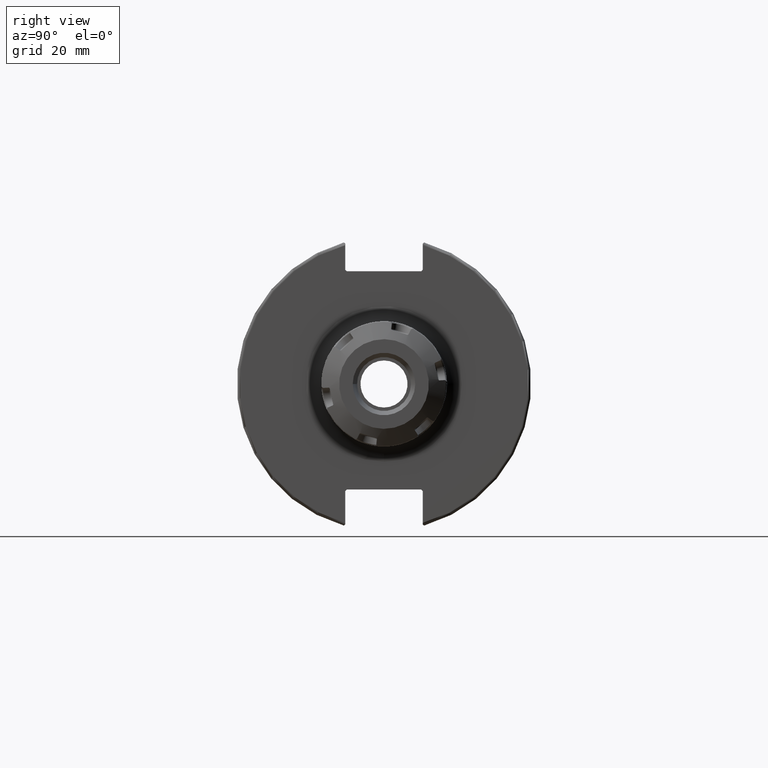
[diagram: clean part render]
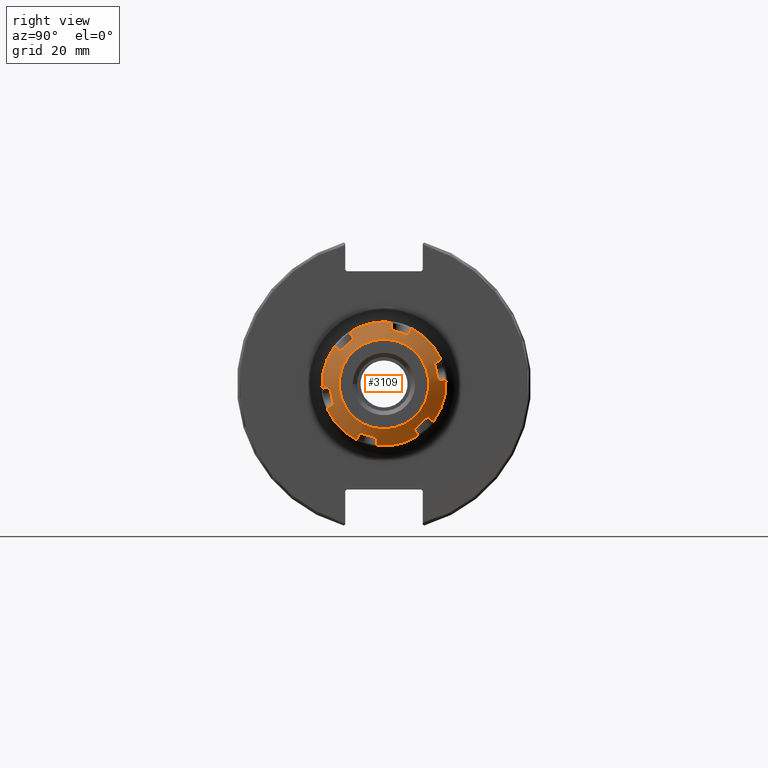
[diagram: same view with one face highlighted and labeled with its STEP entity id]
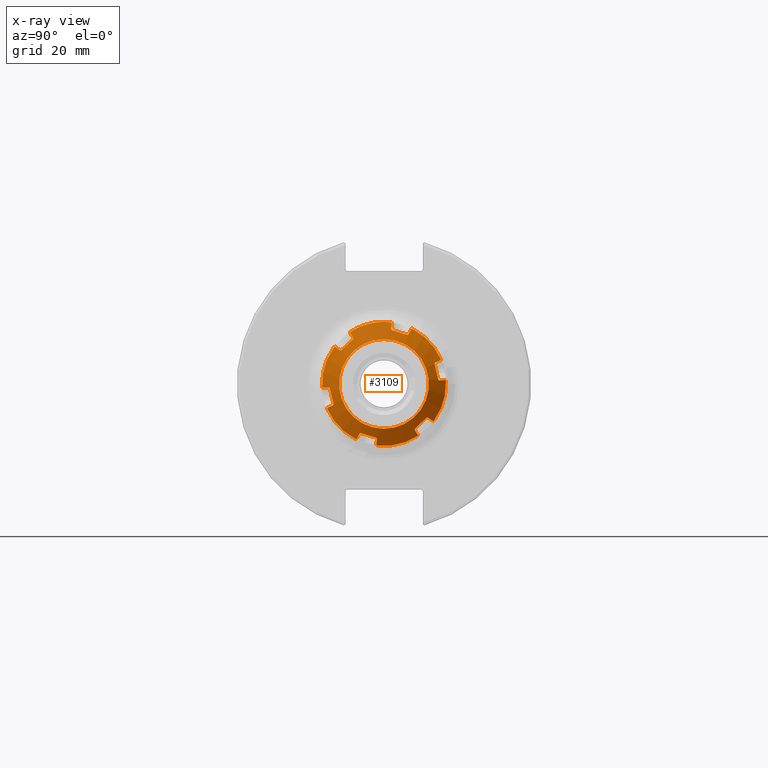
[diagram: x-ray of the same camera — body ghosted, the highlighted face saturated]
A machine part, right view. The second image highlights one B-rep face of the part: STEP entity #3109.
The next image is the same camera in x-ray: the body ghosted, the highlighted face saturated — about 0% of this face is hidden behind the body in this view.
In plain terms, the highlighted conical surface has half-angle 60 deg.
Its self-contained STEP definition (entity closure, byte-faithful):
#162=CONICAL_SURFACE('',#3487,17.87499999999,1.0471975511966);
#234=B_SPLINE_CURVE_WITH_KNOTS('',3,(#5573,#5574,#5575,#5576,#5577),
 .UNSPECIFIED.,.F.,.F.,(4,1,4),(0.,0.5,1.),.UNSPECIFIED.);
#235=B_SPLINE_CURVE_WITH_KNOTS('',3,(#5581,#5582,#5583,#5584,#5585,#5586,
#5587,#5588,#5589,#5590),.UNSPECIFIED.,.F.,.F.,(4,2,2,2,4),(0.000528578936882645,
0.0215655882195211,0.0431311764390421,0.0615000722303087,0.0730576288802265),
 .UNSPECIFIED.);
#236=B_SPLINE_CURVE_WITH_KNOTS('',3,(#5592,#5593,#5594,#5595,#5596,#5597,
#5598),.UNSPECIFIED.,.F.,.F.,(4,1,1,1,4),(0.,0.25,0.5,0.75,1.),
 .UNSPECIFIED.);
#237=B_SPLINE_CURVE_WITH_KNOTS('',3,(#5600,#5601,#5602,#5603,#5604,#5605,
#5606,#5607,#5608,#5609),.UNSPECIFIED.,.F.,.F.,(4,2,2,2,4),(0.252069009809256,
0.263626566458915,0.281995462250182,0.303561050469703,0.324598059752141),
 .UNSPECIFIED.);
#238=B_SPLINE_CURVE_WITH_KNOTS('',3,(#5613,#5614,#5615,#5616,#5617),
 .UNSPECIFIED.,.F.,.F.,(4,1,4),(0.,0.5,1.),.UNSPECIFIED.);
#239=B_SPLINE_CURVE_WITH_KNOTS('',3,(#5621,#5622,#5623,#5624,#5625),
 .UNSPECIFIED.,.F.,.F.,(4,1,4),(0.,0.5,1.),.UNSPECIFIED.);
#240=B_SPLINE_CURVE_WITH_KNOTS('',3,(#5629,#5630,#5631,#5632,#5633,#5634,
#5635,#5636,#5637,#5638),.UNSPECIFIED.,.F.,.F.,(4,2,2,2,4),(0.000528578936294754,
0.0215655882195209,0.0431311764390418,0.0615000722303084,0.073057628880325),
 .UNSPECIFIED.);
#241=B_SPLINE_CURVE_WITH_KNOTS('',3,(#5640,#5641,#5642,#5643,#5644,#5645,
#5646),.UNSPECIFIED.,.F.,.F.,(4,1,1,1,4),(0.,0.25,0.5,0.75,1.),
 .UNSPECIFIED.);
#242=B_SPLINE_CURVE_WITH_KNOTS('',3,(#5648,#5649,#5650,#5651,#5652,#5653,
#5654,#5655,#5656,#5657),.UNSPECIFIED.,.F.,.F.,(4,2,2,2,4),(0.252069009808898,
0.263626566458915,0.281995462250181,0.303561050469702,0.324598059752928),
 .UNSPECIFIED.);
#243=B_SPLINE_CURVE_WITH_KNOTS('',3,(#5661,#5662,#5663,#5664,#5665),
 .UNSPECIFIED.,.F.,.F.,(4,1,4),(0.,0.5,1.),.UNSPECIFIED.);
#244=B_SPLINE_CURVE_WITH_KNOTS('',3,(#5669,#5670,#5671,#5672,#5673),
 .UNSPECIFIED.,.F.,.F.,(4,1,4),(0.,0.5,1.),.UNSPECIFIED.);
#245=B_SPLINE_CURVE_WITH_KNOTS('',3,(#5677,#5678,#5679,#5680,#5681,#5682,
#5683,#5684,#5685,#5686),.UNSPECIFIED.,.F.,.F.,(4,2,2,2,4),(0.000528578937082939,
0.021565588219521,0.0431311764390419,0.0615000722303086,0.0730576288799682),
 .UNSPECIFIED.);
#246=B_SPLINE_CURVE_WITH_KNOTS('',3,(#5688,#5689,#5690,#5691,#5692,#5693,
#5694),.UNSPECIFIED.,.F.,.F.,(4,1,1,1,4),(0.,0.25,0.5,0.75,1.),
 .UNSPECIFIED.);
#247=B_SPLINE_CURVE_WITH_KNOTS('',3,(#5696,#5697,#5698,#5699,#5700,#5701,
#5702,#5703,#5704,#5705),.UNSPECIFIED.,.F.,.F.,(4,2,2,2,4),(0.252069009808997,
0.263626566458915,0.281995462250181,0.303561050469702,0.324598059752341),
 .UNSPECIFIED.);
#248=B_SPLINE_CURVE_WITH_KNOTS('',3,(#5709,#5710,#5711,#5712,#5713),
 .UNSPECIFIED.,.F.,.F.,(4,1,4),(0.,0.5,1.),.UNSPECIFIED.);
#249=B_SPLINE_CURVE_WITH_KNOTS('',3,(#5717,#5718,#5719,#5720,#5721),
 .UNSPECIFIED.,.F.,.F.,(4,1,4),(0.,0.5,1.),.UNSPECIFIED.);
#250=B_SPLINE_CURVE_WITH_KNOTS('',3,(#5725,#5726,#5727,#5728,#5729,#5730,
#5731,#5732,#5733,#5734),.UNSPECIFIED.,.F.,.F.,(4,2,2,2,4),(0.000528578936882645,
0.0215655882195211,0.0431311764390421,0.0615000722303087,0.0730576288802265),
 .UNSPECIFIED.);
#251=B_SPLINE_CURVE_WITH_KNOTS('',3,(#5736,#5737,#5738,#5739,#5740,#5741,
#5742),.UNSPECIFIED.,.F.,.F.,(4,1,1,1,4),(0.,0.25,0.5,0.75,1.),
 .UNSPECIFIED.);
#252=B_SPLINE_CURVE_WITH_KNOTS('',3,(#5744,#5745,#5746,#5747,#5748,#5749,
#5750,#5751,#5752,#5753),.UNSPECIFIED.,.F.,.F.,(4,2,2,2,4),(0.252069009809255,
0.263626566458915,0.281995462250182,0.303561050469703,0.324598059752141),
 .UNSPECIFIED.);
#253=B_SPLINE_CURVE_WITH_KNOTS('',3,(#5757,#5758,#5759,#5760,#5761),
 .UNSPECIFIED.,.F.,.F.,(4,1,4),(0.,0.5,1.),.UNSPECIFIED.);
#254=B_SPLINE_CURVE_WITH_KNOTS('',3,(#5765,#5766,#5767,#5768,#5769),
 .UNSPECIFIED.,.F.,.F.,(4,1,4),(0.,0.5,1.),.UNSPECIFIED.);
#255=B_SPLINE_CURVE_WITH_KNOTS('',3,(#5773,#5774,#5775,#5776,#5777,#5778,
#5779,#5780,#5781,#5782),.UNSPECIFIED.,.F.,.F.,(4,2,2,2,4),(0.000528578936294754,
0.0215655882195209,0.0431311764390418,0.0615000722303084,0.0730576288803251),
 .UNSPECIFIED.);
#256=B_SPLINE_CURVE_WITH_KNOTS('',3,(#5784,#5785,#5786,#5787,#5788,#5789,
#5790),.UNSPECIFIED.,.F.,.F.,(4,1,1,1,4),(0.,0.25,0.5,0.75,1.),
 .UNSPECIFIED.);
#257=B_SPLINE_CURVE_WITH_KNOTS('',3,(#5792,#5793,#5794,#5795,#5796,#5797,
#5798,#5799,#5800,#5801),.UNSPECIFIED.,.F.,.F.,(4,2,2,2,4),(0.252069009808898,
0.263626566458915,0.281995462250181,0.303561050469702,0.324598059752928),
 .UNSPECIFIED.);
#258=B_SPLINE_CURVE_WITH_KNOTS('',3,(#5805,#5806,#5807,#5808,#5809),
 .UNSPECIFIED.,.F.,.F.,(4,1,4),(0.,0.5,1.),.UNSPECIFIED.);
#259=B_SPLINE_CURVE_WITH_KNOTS('',3,(#5813,#5814,#5815,#5816,#5817),
 .UNSPECIFIED.,.F.,.F.,(4,1,4),(0.,0.5,1.),.UNSPECIFIED.);
#260=B_SPLINE_CURVE_WITH_KNOTS('',3,(#5821,#5822,#5823,#5824,#5825,#5826,
#5827,#5828,#5829,#5830),.UNSPECIFIED.,.F.,.F.,(4,2,2,2,4),(0.000528578937082939,
0.021565588219521,0.0431311764390419,0.0615000722303086,0.0730576288799681),
 .UNSPECIFIED.);
#261=B_SPLINE_CURVE_WITH_KNOTS('',3,(#5832,#5833,#5834,#5835,#5836,#5837,
#5838),.UNSPECIFIED.,.F.,.F.,(4,1,1,1,4),(0.,0.25,0.5,0.75,1.),
 .UNSPECIFIED.);
#262=B_SPLINE_CURVE_WITH_KNOTS('',3,(#5840,#5841,#5842,#5843,#5844,#5845,
#5846,#5847,#5848,#5849),.UNSPECIFIED.,.F.,.F.,(4,2,2,2,4),(0.252069009808997,
0.263626566458915,0.281995462250181,0.303561050469702,0.324598059752341),
 .UNSPECIFIED.);
#263=B_SPLINE_CURVE_WITH_KNOTS('',3,(#5853,#5854,#5855,#5856,#5857),
 .UNSPECIFIED.,.F.,.F.,(4,1,4),(0.,0.5,1.),.UNSPECIFIED.);
#389=FACE_OUTER_BOUND('',#585,.T.);
#585=EDGE_LOOP('',(#2601,#2602,#2603,#2604,#2605,#2606,#2607,#2608,#2609,
#2610,#2611,#2612,#2613,#2614,#2615,#2616,#2617,#2618,#2619,#2620,#2621,
#2622,#2623,#2624,#2625,#2626,#2627,#2628,#2629,#2630,#2631,#2632,#2633,
#2634,#2635,#2636,#2637,#2638,#2639,#2640,#2641,#2642,#2643,#2644,#2645,
#2646,#2647,#2648,#2649,#2650,#2651,#2652));
#753=LINE('',#5579,#939);
#754=LINE('',#5611,#940);
#755=LINE('',#5627,#941);
#756=LINE('',#5659,#942);
#757=LINE('',#5675,#943);
#758=LINE('',#5707,#944);
#759=LINE('',#5723,#945);
#760=LINE('',#5755,#946);
#761=LINE('',#5771,#947);
#762=LINE('',#5803,#948);
#763=LINE('',#5819,#949);
#764=LINE('',#5851,#950);
#765=LINE('',#5859,#951);
#939=VECTOR('',#4190,10.);
#940=VECTOR('',#4191,10.);
#941=VECTOR('',#4194,10.);
#942=VECTOR('',#4195,10.);
#943=VECTOR('',#4198,10.);
#944=VECTOR('',#4199,10.);
#945=VECTOR('',#4202,10.);
#946=VECTOR('',#4203,10.);
#947=VECTOR('',#4206,10.);
#948=VECTOR('',#4207,10.);
#949=VECTOR('',#4210,10.);
#950=VECTOR('',#4211,10.);
#951=VECTOR('',#4214,17.87499999999);
#1167=CIRCLE('',#3486,15.);
#1168=CIRCLE('',#3488,20.75);
#1169=CIRCLE('',#3489,20.75);
#1170=CIRCLE('',#3490,20.75);
#1171=CIRCLE('',#3491,20.75);
#1172=CIRCLE('',#3492,20.75);
#1173=CIRCLE('',#3493,20.75);
#1174=CIRCLE('',#3494,20.75);
#1420=VERTEX_POINT('',#5566);
#1421=VERTEX_POINT('',#5569);
#1422=VERTEX_POINT('',#5570);
#1423=VERTEX_POINT('',#5572);
#1424=VERTEX_POINT('',#5578);
#1425=VERTEX_POINT('',#5580);
#1426=VERTEX_POINT('',#5591);
#1427=VERTEX_POINT('',#5599);
#1428=VERTEX_POINT('',#5610);
#1429=VERTEX_POINT('',#5612);
#1430=VERTEX_POINT('',#5618);
#1431=VERTEX_POINT('',#5620);
#1432=VERTEX_POINT('',#5626);
#1433=VERTEX_POINT('',#5628);
#1434=VERTEX_POINT('',#5639);
#1435=VERTEX_POINT('',#5647);
#1436=VERTEX_POINT('',#5658);
#1437=VERTEX_POINT('',#5660);
#1438=VERTEX_POINT('',#5666);
#1439=VERTEX_POINT('',#5668);
#1440=VERTEX_POINT('',#5674);
#1441=VERTEX_POINT('',#5676);
#1442=VERTEX_POINT('',#5687);
#1443=VERTEX_POINT('',#5695);
#1444=VERTEX_POINT('',#5706);
#1445=VERTEX_POINT('',#5708);
#1446=VERTEX_POINT('',#5714);
#1447=VERTEX_POINT('',#5716);
#1448=VERTEX_POINT('',#5722);
#1449=VERTEX_POINT('',#5724);
#1450=VERTEX_POINT('',#5735);
#1451=VERTEX_POINT('',#5743);
#1452=VERTEX_POINT('',#5754);
#1453=VERTEX_POINT('',#5756);
#1454=VERTEX_POINT('',#5762);
#1455=VERTEX_POINT('',#5764);
#1456=VERTEX_POINT('',#5770);
#1457=VERTEX_POINT('',#5772);
#1458=VERTEX_POINT('',#5783);
#1459=VERTEX_POINT('',#5791);
#1460=VERTEX_POINT('',#5802);
#1461=VERTEX_POINT('',#5804);
#1462=VERTEX_POINT('',#5810);
#1463=VERTEX_POINT('',#5812);
#1464=VERTEX_POINT('',#5818);
#1465=VERTEX_POINT('',#5820);
#1466=VERTEX_POINT('',#5831);
#1467=VERTEX_POINT('',#5839);
#1468=VERTEX_POINT('',#5850);
#1469=VERTEX_POINT('',#5852);
#1828=EDGE_CURVE('',#1420,#1420,#1167,.T.);
#1829=EDGE_CURVE('',#1421,#1422,#1168,.T.);
#1830=EDGE_CURVE('',#1421,#1423,#234,.T.);
#1831=EDGE_CURVE('',#1424,#1423,#753,.T.);
#1832=EDGE_CURVE('',#1424,#1425,#235,.T.);
#1833=EDGE_CURVE('',#1426,#1425,#236,.T.);
#1834=EDGE_CURVE('',#1426,#1427,#237,.T.);
#1835=EDGE_CURVE('',#1428,#1427,#754,.T.);
#1836=EDGE_CURVE('',#1428,#1429,#238,.T.);
#1837=EDGE_CURVE('',#1429,#1430,#1169,.T.);
#1838=EDGE_CURVE('',#1430,#1431,#239,.T.);
#1839=EDGE_CURVE('',#1432,#1431,#755,.T.);
#1840=EDGE_CURVE('',#1432,#1433,#240,.T.);
#1841=EDGE_CURVE('',#1434,#1433,#241,.T.);
#1842=EDGE_CURVE('',#1434,#1435,#242,.T.);
#1843=EDGE_CURVE('',#1436,#1435,#756,.T.);
#1844=EDGE_CURVE('',#1436,#1437,#243,.T.);
#1845=EDGE_CURVE('',#1437,#1438,#1170,.T.);
#1846=EDGE_CURVE('',#1438,#1439,#244,.T.);
#1847=EDGE_CURVE('',#1440,#1439,#757,.T.);
#1848=EDGE_CURVE('',#1440,#1441,#245,.T.);
#1849=EDGE_CURVE('',#1442,#1441,#246,.T.);
#1850=EDGE_CURVE('',#1442,#1443,#247,.T.);
#1851=EDGE_CURVE('',#1444,#1443,#758,.T.);
#1852=EDGE_CURVE('',#1444,#1445,#248,.T.);
#1853=EDGE_CURVE('',#1446,#1445,#1171,.T.);
#1854=EDGE_CURVE('',#1446,#1447,#249,.T.);
#1855=EDGE_CURVE('',#1448,#1447,#759,.T.);
#1856=EDGE_CURVE('',#1448,#1449,#250,.T.);
#1857=EDGE_CURVE('',#1450,#1449,#251,.T.);
#1858=EDGE_CURVE('',#1450,#1451,#252,.T.);
#1859=EDGE_CURVE('',#1452,#1451,#760,.T.);
#1860=EDGE_CURVE('',#1452,#1453,#253,.T.);
#1861=EDGE_CURVE('',#1453,#1454,#1172,.T.);
#1862=EDGE_CURVE('',#1454,#1455,#254,.T.);
#1863=EDGE_CURVE('',#1456,#1455,#761,.T.);
#1864=EDGE_CURVE('',#1456,#1457,#255,.T.);
#1865=EDGE_CURVE('',#1458,#1457,#256,.T.);
#1866=EDGE_CURVE('',#1458,#1459,#257,.T.);
#1867=EDGE_CURVE('',#1460,#1459,#762,.T.);
#1868=EDGE_CURVE('',#1460,#1461,#258,.T.);
#1869=EDGE_CURVE('',#1461,#1462,#1173,.T.);
#1870=EDGE_CURVE('',#1462,#1463,#259,.T.);
#1871=EDGE_CURVE('',#1464,#1463,#763,.T.);
#1872=EDGE_CURVE('',#1464,#1465,#260,.T.);
#1873=EDGE_CURVE('',#1466,#1465,#261,.T.);
#1874=EDGE_CURVE('',#1466,#1467,#262,.T.);
#1875=EDGE_CURVE('',#1468,#1467,#764,.T.);
#1876=EDGE_CURVE('',#1468,#1469,#263,.T.);
#1877=EDGE_CURVE('',#1422,#1469,#1174,.T.);
#1878=EDGE_CURVE('',#1422,#1420,#765,.T.);
#2601=ORIENTED_EDGE('',*,*,#1829,.F.);
#2602=ORIENTED_EDGE('',*,*,#1830,.T.);
#2603=ORIENTED_EDGE('',*,*,#1831,.F.);
#2604=ORIENTED_EDGE('',*,*,#1832,.T.);
#2605=ORIENTED_EDGE('',*,*,#1833,.F.);
#2606=ORIENTED_EDGE('',*,*,#1834,.T.);
#2607=ORIENTED_EDGE('',*,*,#1835,.F.);
#2608=ORIENTED_EDGE('',*,*,#1836,.T.);
#2609=ORIENTED_EDGE('',*,*,#1837,.T.);
#2610=ORIENTED_EDGE('',*,*,#1838,.T.);
#2611=ORIENTED_EDGE('',*,*,#1839,.F.);
#2612=ORIENTED_EDGE('',*,*,#1840,.T.);
#2613=ORIENTED_EDGE('',*,*,#1841,.F.);
#2614=ORIENTED_EDGE('',*,*,#1842,.T.);
#2615=ORIENTED_EDGE('',*,*,#1843,.F.);
#2616=ORIENTED_EDGE('',*,*,#1844,.T.);
#2617=ORIENTED_EDGE('',*,*,#1845,.T.);
#2618=ORIENTED_EDGE('',*,*,#1846,.T.);
#2619=ORIENTED_EDGE('',*,*,#1847,.F.);
#2620=ORIENTED_EDGE('',*,*,#1848,.T.);
#2621=ORIENTED_EDGE('',*,*,#1849,.F.);
#2622=ORIENTED_EDGE('',*,*,#1850,.T.);
#2623=ORIENTED_EDGE('',*,*,#1851,.F.);
#2624=ORIENTED_EDGE('',*,*,#1852,.T.);
#2625=ORIENTED_EDGE('',*,*,#1853,.F.);
#2626=ORIENTED_EDGE('',*,*,#1854,.T.);
#2627=ORIENTED_EDGE('',*,*,#1855,.F.);
#2628=ORIENTED_EDGE('',*,*,#1856,.T.);
#2629=ORIENTED_EDGE('',*,*,#1857,.F.);
#2630=ORIENTED_EDGE('',*,*,#1858,.T.);
#2631=ORIENTED_EDGE('',*,*,#1859,.F.);
#2632=ORIENTED_EDGE('',*,*,#1860,.T.);
#2633=ORIENTED_EDGE('',*,*,#1861,.T.);
#2634=ORIENTED_EDGE('',*,*,#1862,.T.);
#2635=ORIENTED_EDGE('',*,*,#1863,.F.);
#2636=ORIENTED_EDGE('',*,*,#1864,.T.);
#2637=ORIENTED_EDGE('',*,*,#1865,.F.);
#2638=ORIENTED_EDGE('',*,*,#1866,.T.);
#2639=ORIENTED_EDGE('',*,*,#1867,.F.);
#2640=ORIENTED_EDGE('',*,*,#1868,.T.);
#2641=ORIENTED_EDGE('',*,*,#1869,.T.);
#2642=ORIENTED_EDGE('',*,*,#1870,.T.);
#2643=ORIENTED_EDGE('',*,*,#1871,.F.);
#2644=ORIENTED_EDGE('',*,*,#1872,.T.);
#2645=ORIENTED_EDGE('',*,*,#1873,.F.);
#2646=ORIENTED_EDGE('',*,*,#1874,.T.);
#2647=ORIENTED_EDGE('',*,*,#1875,.F.);
#2648=ORIENTED_EDGE('',*,*,#1876,.T.);
#2649=ORIENTED_EDGE('',*,*,#1877,.F.);
#2650=ORIENTED_EDGE('',*,*,#1878,.T.);
#2651=ORIENTED_EDGE('',*,*,#1828,.F.);
#2652=ORIENTED_EDGE('',*,*,#1878,.F.);
#3109=ADVANCED_FACE('',(#389),#162,.T.);
#3486=AXIS2_PLACEMENT_3D('',#5567,#4184,#4185);
#3487=AXIS2_PLACEMENT_3D('',#5568,#4186,#4187);
#3488=AXIS2_PLACEMENT_3D('',#5571,#4188,#4189);
#3489=AXIS2_PLACEMENT_3D('',#5619,#4192,#4193);
#3490=AXIS2_PLACEMENT_3D('',#5667,#4196,#4197);
#3491=AXIS2_PLACEMENT_3D('',#5715,#4200,#4201);
#3492=AXIS2_PLACEMENT_3D('',#5763,#4204,#4205);
#3493=AXIS2_PLACEMENT_3D('',#5811,#4208,#4209);
#3494=AXIS2_PLACEMENT_3D('',#5858,#4212,#4213);
#4184=DIRECTION('center_axis',(1.,0.,0.));
#4185=DIRECTION('ref_axis',(0.,0.,1.));
#4186=DIRECTION('center_axis',(-1.,0.,0.));
#4187=DIRECTION('ref_axis',(0.,0.,-1.));
#4188=DIRECTION('center_axis',(-1.,0.,0.));
#4189=DIRECTION('ref_axis',(0.,-0.338154383362992,0.941090650794277));
#4190=DIRECTION('',(-0.499985630569931,-0.296200970137599,0.81380547707246));
#4191=DIRECTION('',(0.499985630568637,0.556675731813364,-0.663420303303222));
#4192=DIRECTION('center_axis',(1.,0.,0.));
#4193=DIRECTION('ref_axis',(0.,-0.645931219170366,0.76339561179056));
#4194=DIRECTION('',(-0.4999856305701,-0.852876701952219,0.150385173772302));
#4195=DIRECTION('',(0.4999856305701,0.852876701952219,0.150385173772302));
#4196=DIRECTION('center_axis',(1.,0.,0.));
#4197=DIRECTION('ref_axis',(0.,-0.984085602533375,-0.177695039003695));
#4198=DIRECTION('',(-0.499985630568637,-0.556675731813364,-0.663420303303222));
#4199=DIRECTION('',(0.499985630569931,0.296200970137599,0.81380547707246));
#4200=DIRECTION('center_axis',(-1.,0.,0.));
#4201=DIRECTION('ref_axis',(0.,0.338154383362992,-0.941090650794277));
#4202=DIRECTION('',(-0.499985630569931,0.296200970137599,-0.81380547707246));
#4203=DIRECTION('',(0.499985630568637,-0.556675731813364,0.663420303303222));
#4204=DIRECTION('center_axis',(1.,0.,0.));
#4205=DIRECTION('ref_axis',(0.,0.645931219170366,-0.76339561179056));
#4206=DIRECTION('',(-0.4999856305701,0.852876701952219,-0.150385173772302));
#4207=DIRECTION('',(0.4999856305701,-0.852876701952219,-0.150385173772302));
#4208=DIRECTION('center_axis',(1.,0.,0.));
#4209=DIRECTION('ref_axis',(0.,0.984085602533375,0.177695039003695));
#4210=DIRECTION('',(-0.499985630568637,0.556675731813364,0.663420303303222));
#4211=DIRECTION('',(0.499985630569931,-0.296200970137599,-0.81380547707246));
#4212=DIRECTION('center_axis',(-1.,0.,0.));
#4213=DIRECTION('ref_axis',(0.,-0.338154383362992,0.941090650794277));
#4214=DIRECTION('',(0.5,-1.06057523872491E-16,-0.866025403784439));
#5566=CARTESIAN_POINT('',(10.,0.,15.));
#5567=CARTESIAN_POINT('Origin',(10.,0.,0.));
#5568=CARTESIAN_POINT('Origin',(8.340117976085,0.,0.));
#5569=CARTESIAN_POINT('',(6.68023595216,-7.016703454783,19.52763100398));
#5570=CARTESIAN_POINT('',(6.68023595215821,2.54114210823094E-15,20.7500000000015));
#5571=CARTESIAN_POINT('Origin',(6.68023595216,0.,0.));
#5572=CARTESIAN_POINT('',(6.825682591738,-7.171427942968,19.20265255629));
#5573=CARTESIAN_POINT('Ctrl Pts',(6.68023595216,-7.016703454783,19.52763100398));
#5574=CARTESIAN_POINT('Ctrl Pts',(6.704787157248,-7.042656692872,19.47311963913));
#5575=CARTESIAN_POINT('Ctrl Pts',(6.753579391822,-7.094397359189,19.36444517125));
#5576=CARTESIAN_POINT('Ctrl Pts',(6.801751497951,-7.145806366539,19.25646730943));
#5577=CARTESIAN_POINT('Ctrl Pts',(6.825682591738,-7.171427942968,19.20265255629));
#5578=CARTESIAN_POINT('',(7.882383512005,-6.545418276707,17.48270513388));
#5579=CARTESIAN_POINT('',(7.882383512005,-6.545418276707,17.48270513388));
#5580=CARTESIAN_POINT('',(8.161702976639,-6.7652645871,16.87868236033));
#5581=CARTESIAN_POINT('Ctrl Pts',(7.88238351200488,-6.5454182767061,17.4827051338802));
#5582=CARTESIAN_POINT('Ctrl Pts',(7.91757308100159,-6.52457123031395,17.4254283446545));
#5583=CARTESIAN_POINT('Ctrl Pts',(7.9552484221707,-6.51324235909714,17.3600045332163));
#5584=CARTESIAN_POINT('Ctrl Pts',(8.02648755858909,-6.51797087692523,17.2263665624065));
#5585=CARTESIAN_POINT('Ctrl Pts',(8.05991393278653,-6.53477525858298,17.1581081869268));
#5586=CARTESIAN_POINT('Ctrl Pts',(8.10920621105696,-6.58768370146919,17.0463470263659));
#5587=CARTESIAN_POINT('Ctrl Pts',(8.12973777953577,-6.62383045448549,16.9942231906329));
#5588=CARTESIAN_POINT('Ctrl Pts',(8.15229926979325,-6.69836013981006,16.9229037408109));
#5589=CARTESIAN_POINT('Ctrl Pts',(8.15844945494287,-6.73087400881105,16.8985377699606));
#5590=CARTESIAN_POINT('Ctrl Pts',(8.16170297663675,-6.7652645870992,16.8786823603282));
#5591=CARTESIAN_POINT('',(8.161702976639,-11.2347354129,14.29823217591));
#5592=CARTESIAN_POINT('Ctrl Pts',(8.161702976639,-11.2347354129,14.29823217591));
#5593=CARTESIAN_POINT('Ctrl Pts',(8.196946708672,-10.86219991454,14.51331564618));
#5594=CARTESIAN_POINT('Ctrl Pts',(8.250134664999,-10.11721577476,14.94343243982));
#5595=CARTESIAN_POINT('Ctrl Pts',(8.276856688426,-8.999986418851,15.5884651092));
#5596=CARTESIAN_POINT('Ctrl Pts',(8.250133735868,-7.882770110197,16.23349024574));
#5597=CARTESIAN_POINT('Ctrl Pts',(8.196946175203,-7.137794446555,16.66360214569));
#5598=CARTESIAN_POINT('Ctrl Pts',(8.161702976639,-6.7652645871,16.87868236033));
#5599=CARTESIAN_POINT('',(7.882383512005,-11.86775763446,14.40985107296));
#5600=CARTESIAN_POINT('Ctrl Pts',(8.16170297663636,-11.2347354129032,14.2982321759159));
#5601=CARTESIAN_POINT('Ctrl Pts',(8.15844945494243,-11.2691259911908,14.2783767662844));
#5602=CARTESIAN_POINT('Ctrl Pts',(8.15229926979289,-11.3064844754347,14.2624019151798));
#5603=CARTESIAN_POINT('Ctrl Pts',(8.1297377795356,-11.4055137734259,14.233517039264));
#5604=CARTESIAN_POINT('Ctrl Pts',(8.10920621105679,-11.4687277158215,14.228274950754));
#5605=CARTESIAN_POINT('Ctrl Pts',(8.05991393278637,-11.5919699414668,14.2383354754203));
#5606=CARTESIAN_POINT('Ctrl Pts',(8.02648755858892,-11.6594856194821,14.2579116417497));
#5607=CARTESIAN_POINT('Ctrl Pts',(7.95524842217086,-11.7775837560271,14.3206356105929));
#5608=CARTESIAN_POINT('Ctrl Pts',(7.91757308100213,-11.8285780031362,14.3631586065815));
#5609=CARTESIAN_POINT('Ctrl Pts',(7.88238351200571,-11.8677576344567,14.4098510729634));
#5610=CARTESIAN_POINT('',(6.825682591738,-13.04427096231,15.81196505817));
#5611=CARTESIAN_POINT('',(6.825682591738,-13.04427096231,15.81196505817));
#5612=CARTESIAN_POINT('',(6.68023595216,-13.40307279778,15.84045894465));
#5613=CARTESIAN_POINT('Ctrl Pts',(6.825682591738,-13.04427096231,15.81196505817));
#5614=CARTESIAN_POINT('Ctrl Pts',(6.801772251375,-13.10363516757,15.81667940675));
#5615=CARTESIAN_POINT('Ctrl Pts',(6.753621129435,-13.22279980844,15.82614274672));
#5616=CARTESIAN_POINT('Ctrl Pts',(6.704808138864,-13.34283651763,15.83567534112));
#5617=CARTESIAN_POINT('Ctrl Pts',(6.68023595216,-13.40307279778,15.84045894465));
#5618=CARTESIAN_POINT('',(6.68023595216,-20.41977625257,3.687172059327));
#5619=CARTESIAN_POINT('Origin',(6.68023595216,0.,0.));
#5620=CARTESIAN_POINT('',(6.825682591738,-20.21569890528,3.390687498127));
#5621=CARTESIAN_POINT('Ctrl Pts',(6.68023595216,-20.41977625257,3.687172059327));
#5622=CARTESIAN_POINT('Ctrl Pts',(6.704799687283,-20.3855271743,3.637414832095));
#5623=CARTESIAN_POINT('Ctrl Pts',(6.753604317172,-20.31726515581,3.538243440133));
#5624=CARTESIAN_POINT('Ctrl Pts',(6.801763891711,-20.2494755586,3.439758384099));
#5625=CARTESIAN_POINT('Ctrl Pts',(6.825682591738,-20.21569890528,3.390687498127));
#5626=CARTESIAN_POINT('',(7.882383512005,-18.41317591117,3.072854060917));
#5627=CARTESIAN_POINT('',(7.882383512005,-18.41317591117,3.072854060917));
#5628=CARTESIAN_POINT('',(8.161702976639,-18.,2.580450184411));
#5629=CARTESIAN_POINT('Ctrl Pts',(7.88238351200324,-18.4131759111689,3.07285406091752));
#5630=CARTESIAN_POINT('Ctrl Pts',(7.91757308100079,-18.3531492334545,3.06226973807448));
#5631=CARTESIAN_POINT('Ctrl Pts',(7.95524842217103,-18.2908261151263,3.03936892262507));
#5632=CARTESIAN_POINT('Ctrl Pts',(8.0264875585904,-18.1774564964073,2.96845492065783));
#5633=CARTESIAN_POINT('Ctrl Pts',(8.05991393278785,-18.1267452000497,2.91977271150746));
#5634=CARTESIAN_POINT('Ctrl Pts',(8.10920621105827,-18.0564114172907,2.8180720756129));
#5635=CARTESIAN_POINT('Ctrl Pts',(8.12973777953708,-18.0293442279114,2.76070615136998));
#5636=CARTESIAN_POINT('Ctrl Pts',(8.15229926979464,-18.0048446152438,2.6605018256315));
#5637=CARTESIAN_POINT('Ctrl Pts',(8.15844945494429,-18.,2.6201610036758));
#5638=CARTESIAN_POINT('Ctrl Pts',(8.16170297663815,-18.,2.58045018441093));
#5639=CARTESIAN_POINT('',(8.161702976639,-18.,-2.580450184411));
#5640=CARTESIAN_POINT('Ctrl Pts',(8.161702976639,-18.,-2.580450184411));
#5641=CARTESIAN_POINT('Ctrl Pts',(8.196946701397,-18.,-2.150283332677));
#5642=CARTESIAN_POINT('Ctrl Pts',(8.250134657495,-18.,-1.290049848268));
#5643=CARTESIAN_POINT('Ctrl Pts',(8.276856692047,-18.,1.567320733414E-5));
#5644=CARTESIAN_POINT('Ctrl Pts',(8.250133728888,-18.,1.290066137805));
#5645=CARTESIAN_POINT('Ctrl Pts',(8.196946168226,-18.,2.150289840288));
#5646=CARTESIAN_POINT('Ctrl Pts',(8.161702976639,-18.,2.580450184411));
#5647=CARTESIAN_POINT('',(7.882383512005,-18.41317591117,-3.072854060917));
#5648=CARTESIAN_POINT('Ctrl Pts',(8.16170297663815,-18.,-2.58045018441093));
#5649=CARTESIAN_POINT('Ctrl Pts',(8.15844945494429,-18.,-2.6201610036758));
#5650=CARTESIAN_POINT('Ctrl Pts',(8.15229926979464,-18.0048446152438,-2.6605018256315));
#5651=CARTESIAN_POINT('Ctrl Pts',(8.12973777953708,-18.0293442279114,-2.76070615136998));
#5652=CARTESIAN_POINT('Ctrl Pts',(8.10920621105827,-18.0564114172907,-2.8180720756129));
#5653=CARTESIAN_POINT('Ctrl Pts',(8.05991393278785,-18.1267452000497,-2.91977271150746));
#5654=CARTESIAN_POINT('Ctrl Pts',(8.0264875585904,-18.1774564964073,-2.96845492065783));
#5655=CARTESIAN_POINT('Ctrl Pts',(7.95524842217103,-18.2908261151263,-3.03936892262507));
#5656=CARTESIAN_POINT('Ctrl Pts',(7.91757308100079,-18.3531492334545,-3.06226973807448));
#5657=CARTESIAN_POINT('Ctrl Pts',(7.88238351200324,-18.4131759111689,-3.07285406091752));
#5658=CARTESIAN_POINT('',(6.825682591738,-20.21569890528,-3.390687498127));
#5659=CARTESIAN_POINT('',(6.825682591738,-20.21569890528,-3.390687498127));
#5660=CARTESIAN_POINT('',(6.68023595216,-20.41977625257,-3.687172059327));
#5661=CARTESIAN_POINT('Ctrl Pts',(6.825682591738,-20.21569890528,-3.390687498127));
#5662=CARTESIAN_POINT('Ctrl Pts',(6.801802913228,-20.24942045459,-3.439678328728));
#5663=CARTESIAN_POINT('Ctrl Pts',(6.753682793811,-20.31715504619,-3.538083472348));
#5664=CARTESIAN_POINT('Ctrl Pts',(6.704839137855,-20.38547216859,-3.637334919529));
#5665=CARTESIAN_POINT('Ctrl Pts',(6.68023595216,-20.41977625257,-3.687172059327));
#5666=CARTESIAN_POINT('',(6.68023595216,-13.40307279778,-15.84045894465));
#5667=CARTESIAN_POINT('Origin',(6.68023595216,0.,0.));
#5668=CARTESIAN_POINT('',(6.825682591738,-13.04427096231,-15.81196505817));
#5669=CARTESIAN_POINT('Ctrl Pts',(6.68023595216,-13.40307279778,-15.84045894465));
#5670=CARTESIAN_POINT('Ctrl Pts',(6.704867770063,-13.34269033766,-15.83566373238));
#5671=CARTESIAN_POINT('Ctrl Pts',(6.753739749803,-13.2225071874,-15.82611950852));
#5672=CARTESIAN_POINT('Ctrl Pts',(6.801831234037,-13.10348872638,-15.81666777727));
#5673=CARTESIAN_POINT('Ctrl Pts',(6.825682591738,-13.04427096231,-15.81196505817));
#5674=CARTESIAN_POINT('',(7.882383512005,-11.86775763446,-14.40985107296));
#5675=CARTESIAN_POINT('',(7.882383512005,-11.86775763446,-14.40985107296));
#5676=CARTESIAN_POINT('',(8.161702976639,-11.2347354129,-14.29823217591));
#5677=CARTESIAN_POINT('Ctrl Pts',(7.88238351200571,-11.8677576344567,-14.4098510729634));
#5678=CARTESIAN_POINT('Ctrl Pts',(7.91757308100214,-11.8285780031362,-14.3631586065815));
#5679=CARTESIAN_POINT('Ctrl Pts',(7.95524842217086,-11.7775837560271,-14.3206356105929));
#5680=CARTESIAN_POINT('Ctrl Pts',(8.02648755858892,-11.6594856194821,-14.2579116417497));
#5681=CARTESIAN_POINT('Ctrl Pts',(8.05991393278637,-11.5919699414668,-14.2383354754203));
#5682=CARTESIAN_POINT('Ctrl Pts',(8.10920621105679,-11.4687277158215,-14.228274950754));
#5683=CARTESIAN_POINT('Ctrl Pts',(8.1297377795356,-11.4055137734259,-14.233517039264));
#5684=CARTESIAN_POINT('Ctrl Pts',(8.15229926979289,-11.3064844754347,-14.2624019151798));
#5685=CARTESIAN_POINT('Ctrl Pts',(8.15844945494243,-11.2691259911908,-14.2783767662844));
#5686=CARTESIAN_POINT('Ctrl Pts',(8.16170297663636,-11.2347354129032,-14.2982321759159));
#5687=CARTESIAN_POINT('',(8.161702976639,-6.7652645871,-16.87868236033));
#5688=CARTESIAN_POINT('Ctrl Pts',(8.161702976639,-6.7652645871,-16.87868236033));
#5689=CARTESIAN_POINT('Ctrl Pts',(8.196946701402,-7.137800008619,-16.66359893443));
#5690=CARTESIAN_POINT('Ctrl Pts',(8.2501346575,-7.882784059363,-16.23348219219));
#5691=CARTESIAN_POINT('Ctrl Pts',(8.276856692044,-9.000013573401,-15.58844943151));
#5692=CARTESIAN_POINT('Ctrl Pts',(8.250133728893,-10.1172300478,-14.94342419928));
#5693=CARTESIAN_POINT('Ctrl Pts',(8.196946168231,-10.86220562714,-14.513312348));
#5694=CARTESIAN_POINT('Ctrl Pts',(8.161702976639,-11.2347354129,-14.29823217591));
#5695=CARTESIAN_POINT('',(7.882383512005,-6.545418276707,-17.48270513388));
#5696=CARTESIAN_POINT('Ctrl Pts',(8.16170297663675,-6.7652645870992,-16.8786823603282));
#5697=CARTESIAN_POINT('Ctrl Pts',(8.15844945494287,-6.73087400881105,-16.8985377699606));
#5698=CARTESIAN_POINT('Ctrl Pts',(8.15229926979325,-6.69836013981006,-16.9229037408109));
#5699=CARTESIAN_POINT('Ctrl Pts',(8.12973777953577,-6.62383045448549,-16.9942231906329));
#5700=CARTESIAN_POINT('Ctrl Pts',(8.10920621105696,-6.58768370146919,-17.0463470263659));
#5701=CARTESIAN_POINT('Ctrl Pts',(8.05991393278654,-6.53477525858298,-17.1581081869268));
#5702=CARTESIAN_POINT('Ctrl Pts',(8.02648755858909,-6.51797087692523,-17.2263665624065));
#5703=CARTESIAN_POINT('Ctrl Pts',(7.9552484221707,-6.51324235909713,-17.3600045332163));
#5704=CARTESIAN_POINT('Ctrl Pts',(7.91757308100158,-6.52457123031395,-17.4254283446545));
#5705=CARTESIAN_POINT('Ctrl Pts',(7.88238351200488,-6.54541827670611,-17.4827051338803));
#5706=CARTESIAN_POINT('',(6.825682591738,-7.171427942968,-19.20265255629));
#5707=CARTESIAN_POINT('',(6.825682591738,-7.171427942968,-19.20265255629));
#5708=CARTESIAN_POINT('',(6.68023595216,-7.016703454783,-19.52763100398));
#5709=CARTESIAN_POINT('Ctrl Pts',(6.825682591738,-7.171427942968,-19.20265255629));
#5710=CARTESIAN_POINT('Ctrl Pts',(6.801800169484,-7.14585847621,-19.25635785991));
#5711=CARTESIAN_POINT('Ctrl Pts',(6.753677275852,-7.094501485456,-19.36422646771));
#5712=CARTESIAN_POINT('Ctrl Pts',(6.704836363943,-7.042708709589,-19.47301038486));
#5713=CARTESIAN_POINT('Ctrl Pts',(6.68023595216,-7.016703454783,-19.52763100398));
#5714=CARTESIAN_POINT('',(6.68023595216,7.016703454783,-19.52763100398));
#5715=CARTESIAN_POINT('Origin',(6.68023595216,0.,0.));
#5716=CARTESIAN_POINT('',(6.825682591738,7.171427942968,-19.20265255629));
#5717=CARTESIAN_POINT('Ctrl Pts',(6.68023595216,7.016703454783,-19.52763100398));
#5718=CARTESIAN_POINT('Ctrl Pts',(6.704868951557,7.042743158167,-19.47293803015));
#5719=CARTESIAN_POINT('Ctrl Pts',(6.75374210006,7.094570444169,-19.364081629));
#5720=CARTESIAN_POINT('Ctrl Pts',(6.801832402682,7.145892986348,-19.25628537591));
#5721=CARTESIAN_POINT('Ctrl Pts',(6.825682591738,7.171427942968,-19.20265255629));
#5722=CARTESIAN_POINT('',(7.882383512005,6.545418276707,-17.48270513388));
#5723=CARTESIAN_POINT('',(7.882383512005,6.545418276707,-17.48270513388));
#5724=CARTESIAN_POINT('',(8.161702976639,6.7652645871,-16.87868236033));
#5725=CARTESIAN_POINT('Ctrl Pts',(7.88238351200488,6.5454182767061,-17.4827051338802));
#5726=CARTESIAN_POINT('Ctrl Pts',(7.91757308100159,6.52457123031395,-17.4254283446545));
#5727=CARTESIAN_POINT('Ctrl Pts',(7.9552484221707,6.51324235909714,-17.3600045332163));
#5728=CARTESIAN_POINT('Ctrl Pts',(8.02648755858909,6.51797087692523,-17.2263665624065));
#5729=CARTESIAN_POINT('Ctrl Pts',(8.05991393278653,6.53477525858298,-17.1581081869268));
#5730=CARTESIAN_POINT('Ctrl Pts',(8.10920621105696,6.58768370146919,-17.0463470263659));
#5731=CARTESIAN_POINT('Ctrl Pts',(8.12973777953577,6.62383045448549,-16.9942231906329));
#5732=CARTESIAN_POINT('Ctrl Pts',(8.15229926979325,6.69836013981006,-16.9229037408109));
#5733=CARTESIAN_POINT('Ctrl Pts',(8.15844945494288,6.73087400881105,-16.8985377699606));
#5734=CARTESIAN_POINT('Ctrl Pts',(8.16170297663675,6.7652645870992,-16.8786823603282));
#5735=CARTESIAN_POINT('',(8.161702976639,11.2347354129,-14.29823217591));
#5736=CARTESIAN_POINT('Ctrl Pts',(8.161702976639,11.2347354129,-14.29823217591));
#5737=CARTESIAN_POINT('Ctrl Pts',(8.196946701402,10.86219999138,-14.51331560181));
#5738=CARTESIAN_POINT('Ctrl Pts',(8.2501346575,10.11721594064,-14.94343234405));
#5739=CARTESIAN_POINT('Ctrl Pts',(8.276856692044,8.999986426599,-15.58846510473));
#5740=CARTESIAN_POINT('Ctrl Pts',(8.250133728893,7.882769952205,-16.23349033696));
#5741=CARTESIAN_POINT('Ctrl Pts',(8.196946168231,7.137794372861,-16.66360218824));
#5742=CARTESIAN_POINT('Ctrl Pts',(8.161702976639,6.7652645871,-16.87868236033));
#5743=CARTESIAN_POINT('',(7.882383512005,11.86775763446,-14.40985107296));
#5744=CARTESIAN_POINT('Ctrl Pts',(8.16170297663636,11.2347354129032,-14.2982321759159));
#5745=CARTESIAN_POINT('Ctrl Pts',(8.15844945494243,11.2691259911908,-14.2783767662844));
#5746=CARTESIAN_POINT('Ctrl Pts',(8.15229926979289,11.3064844754347,-14.2624019151798));
#5747=CARTESIAN_POINT('Ctrl Pts',(8.1297377795356,11.4055137734259,-14.233517039264));
#5748=CARTESIAN_POINT('Ctrl Pts',(8.10920621105679,11.4687277158215,-14.228274950754));
#5749=CARTESIAN_POINT('Ctrl Pts',(8.05991393278637,11.5919699414668,-14.2383354754203));
#5750=CARTESIAN_POINT('Ctrl Pts',(8.02648755858892,11.6594856194821,-14.2579116417497));
#5751=CARTESIAN_POINT('Ctrl Pts',(7.95524842217086,11.7775837560271,-14.3206356105929));
#5752=CARTESIAN_POINT('Ctrl Pts',(7.91757308100214,11.8285780031362,-14.3631586065815));
#5753=CARTESIAN_POINT('Ctrl Pts',(7.88238351200571,11.8677576344567,-14.4098510729634));
#5754=CARTESIAN_POINT('',(6.825682591738,13.04427096231,-15.81196505817));
#5755=CARTESIAN_POINT('',(6.825682591738,13.04427096231,-15.81196505817));
#5756=CARTESIAN_POINT('',(6.68023595216,13.40307279778,-15.84045894465));
#5757=CARTESIAN_POINT('Ctrl Pts',(6.825682591738,13.04427096231,-15.81196505817));
#5758=CARTESIAN_POINT('Ctrl Pts',(6.801787224387,13.10359799282,-15.81667645456));
#5759=CARTESIAN_POINT('Ctrl Pts',(6.753651241858,13.22272552533,-15.8261368476));
#5760=CARTESIAN_POINT('Ctrl Pts',(6.70482327651,13.34279940919,-15.83567239419));
#5761=CARTESIAN_POINT('Ctrl Pts',(6.68023595216,13.40307279778,-15.84045894465));
#5762=CARTESIAN_POINT('',(6.68023595216,20.41977625257,-3.687172059327));
#5763=CARTESIAN_POINT('Origin',(6.68023595216,0.,0.));
#5764=CARTESIAN_POINT('',(6.825682591738,20.21569890528,-3.390687498127));
#5765=CARTESIAN_POINT('Ctrl Pts',(6.68023595216,20.41977625257,-3.687172059327));
#5766=CARTESIAN_POINT('Ctrl Pts',(6.704779833101,20.38555485687,-3.637455049474));
#5767=CARTESIAN_POINT('Ctrl Pts',(6.753564822252,20.31732057033,-3.538323946616));
#5768=CARTESIAN_POINT('Ctrl Pts',(6.80174425346,20.24950329064,-3.439798673345));
#5769=CARTESIAN_POINT('Ctrl Pts',(6.825682591738,20.21569890528,-3.390687498127));
#5770=CARTESIAN_POINT('',(7.882383512005,18.41317591117,-3.072854060917));
#5771=CARTESIAN_POINT('',(7.882383512005,18.41317591117,-3.072854060917));
#5772=CARTESIAN_POINT('',(8.161702976639,18.,-2.580450184411));
#5773=CARTESIAN_POINT('Ctrl Pts',(7.88238351200324,18.4131759111689,-3.07285406091752));
#5774=CARTESIAN_POINT('Ctrl Pts',(7.91757308100079,18.3531492334545,-3.06226973807448));
#5775=CARTESIAN_POINT('Ctrl Pts',(7.95524842217103,18.2908261151263,-3.03936892262507));
#5776=CARTESIAN_POINT('Ctrl Pts',(8.0264875585904,18.1774564964073,-2.96845492065783));
#5777=CARTESIAN_POINT('Ctrl Pts',(8.05991393278785,18.1267452000497,-2.91977271150746));
#5778=CARTESIAN_POINT('Ctrl Pts',(8.10920621105827,18.0564114172907,-2.8180720756129));
#5779=CARTESIAN_POINT('Ctrl Pts',(8.12973777953708,18.0293442279114,-2.76070615136998));
#5780=CARTESIAN_POINT('Ctrl Pts',(8.15229926979464,18.0048446152438,-2.6605018256315));
#5781=CARTESIAN_POINT('Ctrl Pts',(8.15844945494429,18.,-2.6201610036758));
#5782=CARTESIAN_POINT('Ctrl Pts',(8.16170297663815,18.,-2.58045018441093));
#5783=CARTESIAN_POINT('',(8.161702976639,18.,2.580450184411));
#5784=CARTESIAN_POINT('Ctrl Pts',(8.161702976639,18.,2.580450184411));
#5785=CARTESIAN_POINT('Ctrl Pts',(8.196946701402,18.,2.150283332617));
#5786=CARTESIAN_POINT('Ctrl Pts',(8.2501346575,18.,1.29004984814));
#5787=CARTESIAN_POINT('Ctrl Pts',(8.276856692044,18.,-1.567321333185E-5));
#5788=CARTESIAN_POINT('Ctrl Pts',(8.250133728893,18.,-1.290066137683));
#5789=CARTESIAN_POINT('Ctrl Pts',(8.196946168231,18.,-2.150289840231));
#5790=CARTESIAN_POINT('Ctrl Pts',(8.161702976639,18.,-2.580450184411));
#5791=CARTESIAN_POINT('',(7.882383512005,18.41317591117,3.072854060917));
#5792=CARTESIAN_POINT('Ctrl Pts',(8.16170297663814,18.,2.58045018441093));
#5793=CARTESIAN_POINT('Ctrl Pts',(8.15844945494429,18.,2.6201610036758));
#5794=CARTESIAN_POINT('Ctrl Pts',(8.15229926979464,18.0048446152438,2.6605018256315));
#5795=CARTESIAN_POINT('Ctrl Pts',(8.12973777953708,18.0293442279114,2.76070615136998));
#5796=CARTESIAN_POINT('Ctrl Pts',(8.10920621105827,18.0564114172907,2.8180720756129));
#5797=CARTESIAN_POINT('Ctrl Pts',(8.05991393278785,18.1267452000497,2.91977271150746));
#5798=CARTESIAN_POINT('Ctrl Pts',(8.0264875585904,18.1774564964073,2.96845492065782));
#5799=CARTESIAN_POINT('Ctrl Pts',(7.95524842217103,18.2908261151263,3.03936892262507));
#5800=CARTESIAN_POINT('Ctrl Pts',(7.91757308100079,18.3531492334545,3.06226973807448));
#5801=CARTESIAN_POINT('Ctrl Pts',(7.88238351200324,18.4131759111689,3.07285406091752));
#5802=CARTESIAN_POINT('',(6.825682591738,20.21569890528,3.390687498127));
#5803=CARTESIAN_POINT('',(6.825682591738,20.21569890528,3.390687498127));
#5804=CARTESIAN_POINT('',(6.68023595216,20.41977625257,3.687172059327));
#5805=CARTESIAN_POINT('Ctrl Pts',(6.825682591738,20.21569890528,3.390687498127));
#5806=CARTESIAN_POINT('Ctrl Pts',(6.801781318687,20.2494509492,3.439722631439));
#5807=CARTESIAN_POINT('Ctrl Pts',(6.753639364836,20.31721598097,3.538171998679));
#5808=CARTESIAN_POINT('Ctrl Pts',(6.704817305874,20.3855026088,3.637379143212));
#5809=CARTESIAN_POINT('Ctrl Pts',(6.68023595216,20.41977625257,3.687172059327));
#5810=CARTESIAN_POINT('',(6.68023595216,13.40307279778,15.84045894465));
#5811=CARTESIAN_POINT('Origin',(6.68023595216,0.,0.));
#5812=CARTESIAN_POINT('',(6.825682591738,13.04427096231,15.81196505817));
#5813=CARTESIAN_POINT('Ctrl Pts',(6.68023595216,13.40307279778,15.84045894465));
#5814=CARTESIAN_POINT('Ctrl Pts',(6.70480460785,13.34284517356,15.83567602852));
#5815=CARTESIAN_POINT('Ctrl Pts',(6.753614105388,13.22281713574,15.82614412275));
#5816=CARTESIAN_POINT('Ctrl Pts',(6.801768758764,13.10364383897,15.81668009538));
#5817=CARTESIAN_POINT('Ctrl Pts',(6.825682591738,13.04427096231,15.81196505817));
#5818=CARTESIAN_POINT('',(7.882383512005,11.86775763446,14.40985107296));
#5819=CARTESIAN_POINT('',(7.882383512005,11.86775763446,14.40985107296));
#5820=CARTESIAN_POINT('',(8.161702976639,11.2347354129,14.29823217591));
#5821=CARTESIAN_POINT('Ctrl Pts',(7.88238351200571,11.8677576344567,14.4098510729634));
#5822=CARTESIAN_POINT('Ctrl Pts',(7.91757308100213,11.8285780031362,14.3631586065815));
#5823=CARTESIAN_POINT('Ctrl Pts',(7.95524842217086,11.7775837560271,14.3206356105929));
#5824=CARTESIAN_POINT('Ctrl Pts',(8.02648755858892,11.6594856194821,14.2579116417497));
#5825=CARTESIAN_POINT('Ctrl Pts',(8.05991393278637,11.5919699414668,14.2383354754203));
#5826=CARTESIAN_POINT('Ctrl Pts',(8.10920621105679,11.4687277158215,14.228274950754));
#5827=CARTESIAN_POINT('Ctrl Pts',(8.1297377795356,11.4055137734259,14.233517039264));
#5828=CARTESIAN_POINT('Ctrl Pts',(8.15229926979289,11.3064844754347,14.2624019151798));
#5829=CARTESIAN_POINT('Ctrl Pts',(8.15844945494243,11.2691259911908,14.2783767662844));
#5830=CARTESIAN_POINT('Ctrl Pts',(8.16170297663636,11.2347354129032,14.2982321759159));
#5831=CARTESIAN_POINT('',(8.161702976639,6.7652645871,16.87868236033));
#5832=CARTESIAN_POINT('Ctrl Pts',(8.161702976639,6.7652645871,16.87868236033));
#5833=CARTESIAN_POINT('Ctrl Pts',(8.196946708672,7.137800085464,16.66359889006));
#5834=CARTESIAN_POINT('Ctrl Pts',(8.250134664999,7.882784225241,16.23348209642));
#5835=CARTESIAN_POINT('Ctrl Pts',(8.276856688426,9.000013581149,15.58844942704));
#5836=CARTESIAN_POINT('Ctrl Pts',(8.250133735868,10.1172298898,14.9434242905));
#5837=CARTESIAN_POINT('Ctrl Pts',(8.196946175203,10.86220555345,14.51331239055));
#5838=CARTESIAN_POINT('Ctrl Pts',(8.161702976639,11.2347354129,14.29823217591));
#5839=CARTESIAN_POINT('',(7.882383512005,6.545418276707,17.48270513388));
#5840=CARTESIAN_POINT('Ctrl Pts',(8.16170297663675,6.7652645870992,16.8786823603282));
#5841=CARTESIAN_POINT('Ctrl Pts',(8.15844945494287,6.73087400881105,16.8985377699606));
#5842=CARTESIAN_POINT('Ctrl Pts',(8.15229926979325,6.69836013981006,16.9229037408109));
#5843=CARTESIAN_POINT('Ctrl Pts',(8.12973777953577,6.62383045448549,16.9942231906329));
#5844=CARTESIAN_POINT('Ctrl Pts',(8.10920621105696,6.58768370146919,17.0463470263659));
#5845=CARTESIAN_POINT('Ctrl Pts',(8.05991393278654,6.53477525858298,17.1581081869268));
#5846=CARTESIAN_POINT('Ctrl Pts',(8.02648755858909,6.51797087692523,17.2263665624065));
#5847=CARTESIAN_POINT('Ctrl Pts',(7.9552484221707,6.51324235909713,17.3600045332163));
#5848=CARTESIAN_POINT('Ctrl Pts',(7.91757308100158,6.52457123031395,17.4254283446545));
#5849=CARTESIAN_POINT('Ctrl Pts',(7.88238351200488,6.54541827670611,17.4827051338803));
#5850=CARTESIAN_POINT('',(6.825682591738,7.171427942968,19.20265255629));
#5851=CARTESIAN_POINT('',(6.825682591738,7.171427942968,19.20265255629));
#5852=CARTESIAN_POINT('',(6.68023595216,7.016703454783,19.52763100398));
#5853=CARTESIAN_POINT('Ctrl Pts',(6.825682591738,7.171427942968,19.20265255629));
#5854=CARTESIAN_POINT('Ctrl Pts',(6.801780244578,7.145837143817,19.2564026658));
#5855=CARTESIAN_POINT('Ctrl Pts',(6.753637204681,7.094458858754,19.3643159995));
#5856=CARTESIAN_POINT('Ctrl Pts',(6.704816219955,7.042687415248,19.47305511082));
#5857=CARTESIAN_POINT('Ctrl Pts',(6.68023595216,7.016703454783,19.52763100398));
#5858=CARTESIAN_POINT('Origin',(6.68023595216,0.,0.));
#5859=CARTESIAN_POINT('',(8.340117976085,2.18905615347467E-15,17.87499999999));